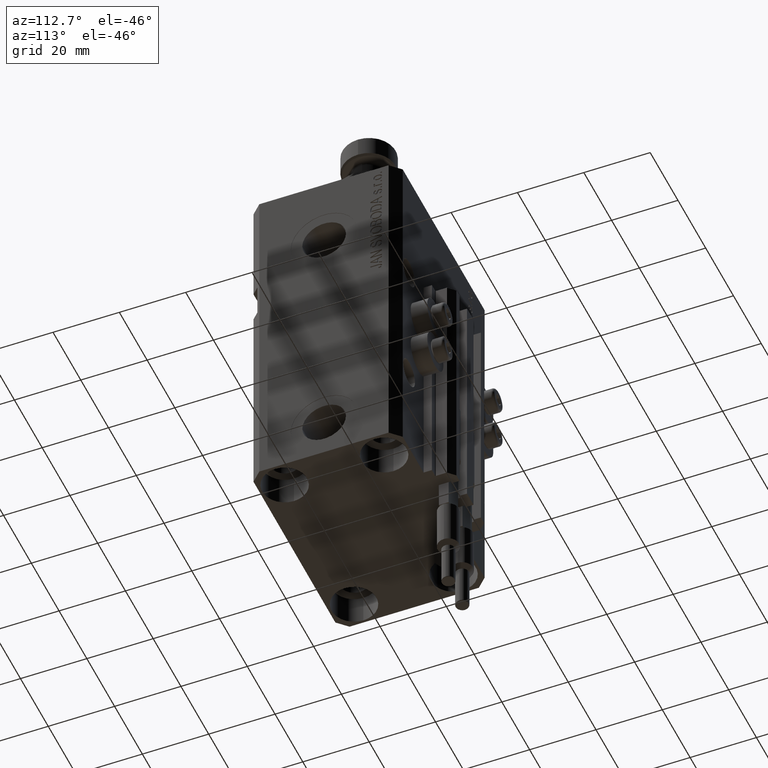
[diagram: clean part render]
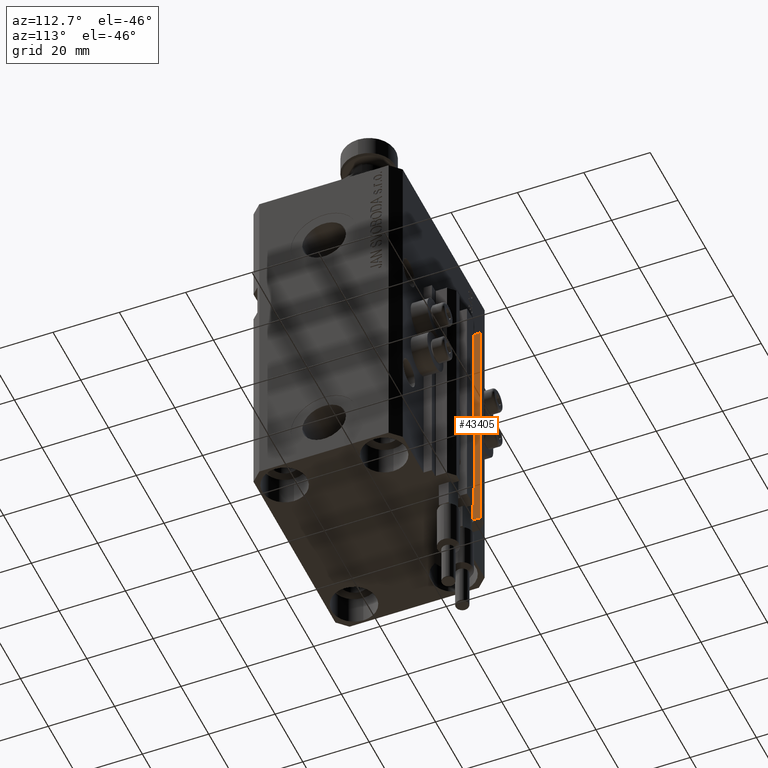
[diagram: same view with one face highlighted and labeled with its STEP entity id]
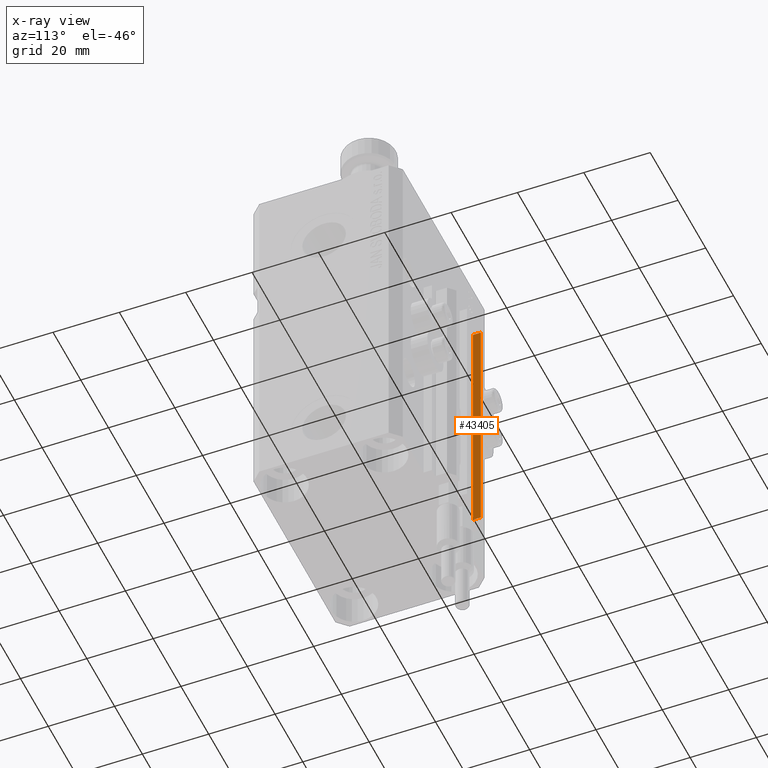
[diagram: x-ray of the same camera — body ghosted, the highlighted face saturated]
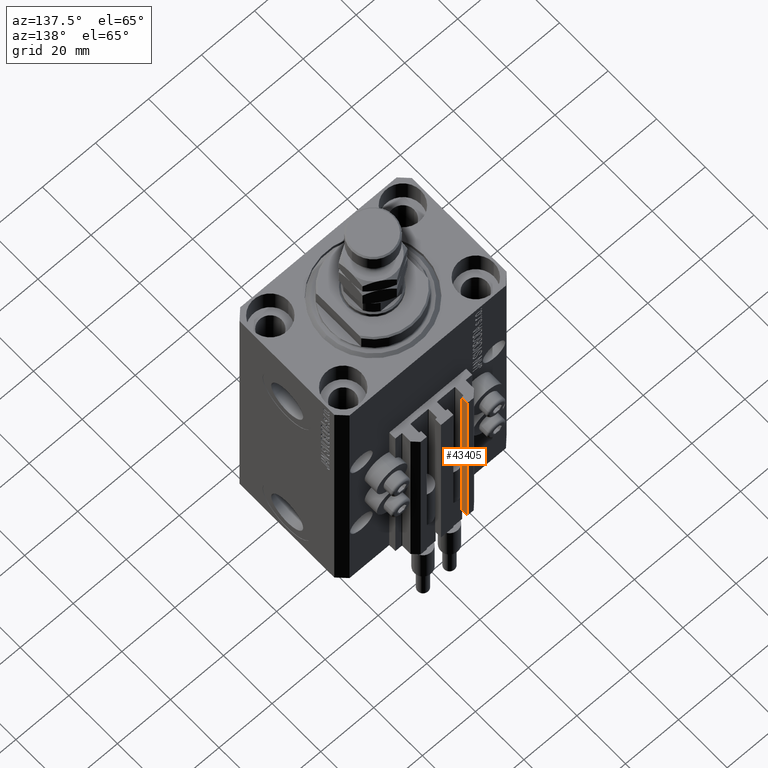
[diagram: same view with one face highlighted and labeled with its STEP entity id]
A machine part, auxiliary view. The second image highlights one B-rep face of the part: STEP entity #43405.
The next image is the same camera in x-ray: the body ghosted, the highlighted face saturated — about 0% of this face is hidden behind the body in this view.
A second angle (auxiliary view) of the same face is appended — the face is thin or edge-on in the first view.
In plain terms, the highlighted planar face has unit normal (1, 0, 0).
Its self-contained STEP definition (entity closure, byte-faithful):
#1281 = EDGE_CURVE ( 'NONE', #24605, #15387, #26051, .T. ) ;
#1599 = CARTESIAN_POINT ( 'NONE',  ( -7.650000000000000355, 28.09999999999948628, -107.0000000000000000 ) ) ;
#1798 = CARTESIAN_POINT ( 'NONE',  ( -7.650000000000000355, 30.49999999999948486, -33.00000000000000000 ) ) ;
#3861 = DIRECTION ( 'NONE',  ( 0.000000000000000000, 1.000000000000000000, 0.000000000000000000 ) ) ;
#4590 = AXIS2_PLACEMENT_3D ( 'NONE', #15455, #30711, #26150 ) ;
#8430 = VECTOR ( 'NONE', #13527, 1000.000000000000000 ) ;
#13527 = DIRECTION ( 'NONE',  ( 0.000000000000000000, 0.000000000000000000, 1.000000000000000000 ) ) ;
#15210 = PLANE ( 'NONE',  #4590 ) ;
#15276 = LINE ( 'NONE', #34597, #22294 ) ;
#15387 = VERTEX_POINT ( 'NONE', #1798 ) ;
#15455 = CARTESIAN_POINT ( 'NONE',  ( -7.650000000000000355, 28.09999999999948628, -107.0000000000000000 ) ) ;
#16497 = ORIENTED_EDGE ( 'NONE', *, *, #1281, .T. ) ;
#16838 = LINE ( 'NONE', #1599, #8430 ) ;
#16914 = ORIENTED_EDGE ( 'NONE', *, *, #39794, .T. ) ;
#17264 = CARTESIAN_POINT ( 'NONE',  ( -7.650000000000000355, 28.09999999999948628, -33.00000000000000000 ) ) ;
#18084 = ORIENTED_EDGE ( 'NONE', *, *, #34089, .F. ) ;
#19434 = VECTOR ( 'NONE', #37968, 1000.000000000000000 ) ;
#20449 = VERTEX_POINT ( 'NONE', #40742 ) ;
#22294 = VECTOR ( 'NONE', #3861, 1000.000000000000000 ) ;
#23773 = VERTEX_POINT ( 'NONE', #17264 ) ;
#24605 = VERTEX_POINT ( 'NONE', #43162 ) ;
#25617 = CARTESIAN_POINT ( 'NONE',  ( -7.650000000000000355, 28.09999999999948628, -107.0000000000000000 ) ) ;
#26051 = LINE ( 'NONE', #49884, #19434 ) ;
#26150 = DIRECTION ( 'NONE',  ( 0.000000000000000000, 0.000000000000000000, -1.000000000000000000 ) ) ;
#26651 = FACE_OUTER_BOUND ( 'NONE', #42074, .T. ) ;
#27145 = VECTOR ( 'NONE', #37041, 1000.000000000000000 ) ;
#30711 = DIRECTION ( 'NONE',  ( 1.000000000000000000, 0.000000000000000000, 0.000000000000000000 ) ) ;
#34089 = EDGE_CURVE ( 'NONE', #20449, #23773, #16838, .T. ) ;
#34597 = CARTESIAN_POINT ( 'NONE',  ( -7.650000000000000355, 28.09999999999948628, -33.00000000000000000 ) ) ;
#35569 = ORIENTED_EDGE ( 'NONE', *, *, #36828, .F. ) ;
#36828 = EDGE_CURVE ( 'NONE', #23773, #15387, #15276, .T. ) ;
#37041 = DIRECTION ( 'NONE',  ( 0.000000000000000000, 1.000000000000000000, 0.000000000000000000 ) ) ;
#37968 = DIRECTION ( 'NONE',  ( 0.000000000000000000, 0.000000000000000000, 1.000000000000000000 ) ) ;
#39794 = EDGE_CURVE ( 'NONE', #20449, #24605, #44640, .T. ) ;
#40742 = CARTESIAN_POINT ( 'NONE',  ( -7.650000000000000355, 28.09999999999948628, -107.0000000000000000 ) ) ;
#42074 = EDGE_LOOP ( 'NONE', ( #35569, #18084, #16914, #16497 ) ) ;
#43162 = CARTESIAN_POINT ( 'NONE',  ( -7.650000000000000355, 30.49999999999948486, -107.0000000000000000 ) ) ;
#43405 = ADVANCED_FACE ( 'NONE', ( #26651 ), #15210, .T. ) ;
#44640 = LINE ( 'NONE', #25617, #27145 ) ;
#49884 = CARTESIAN_POINT ( 'NONE',  ( -7.650000000000000355, 30.49999999999948486, -107.0000000000000000 ) ) ;